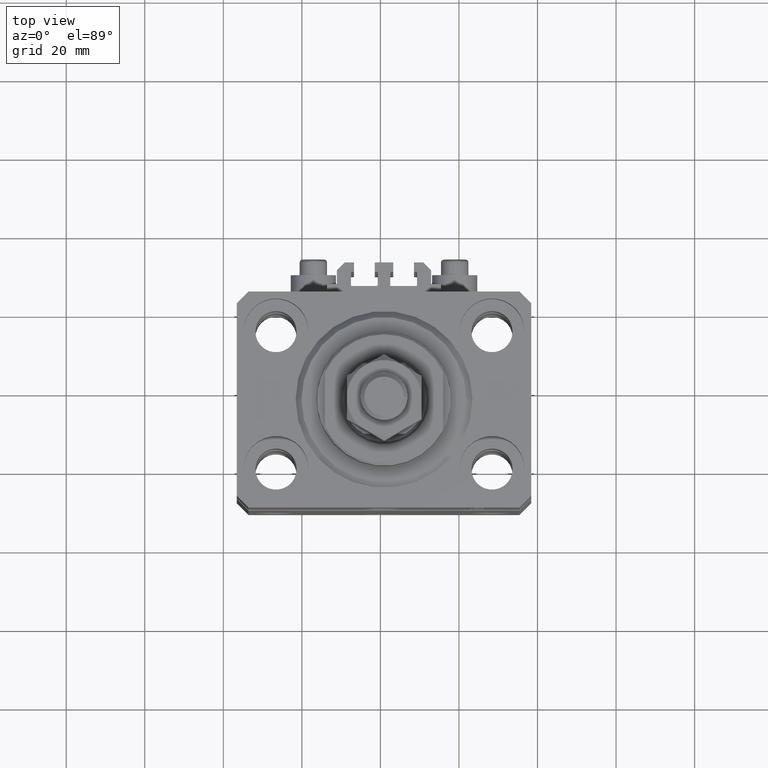
[diagram: clean part render]
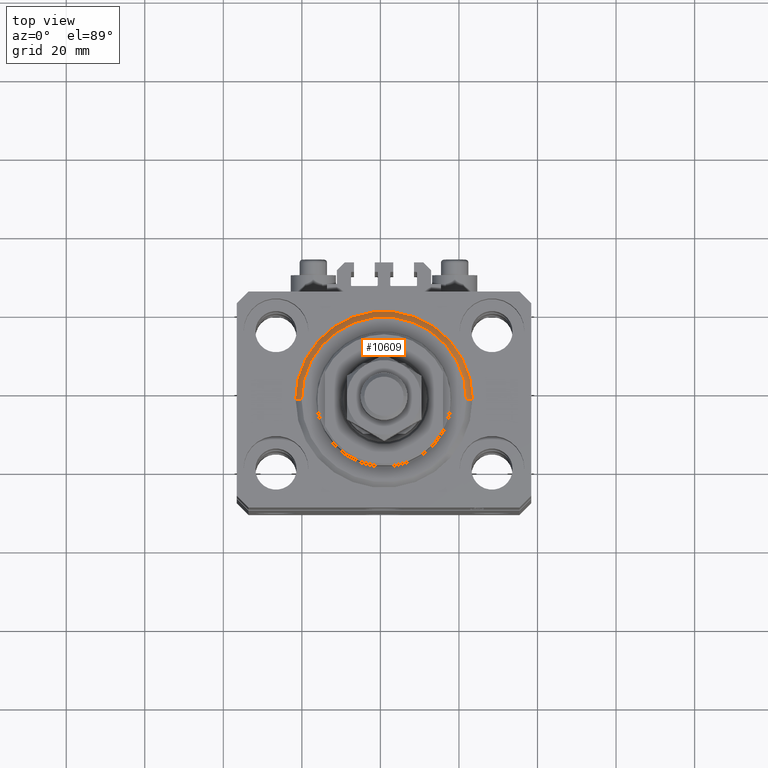
[diagram: same view with one face highlighted and labeled with its STEP entity id]
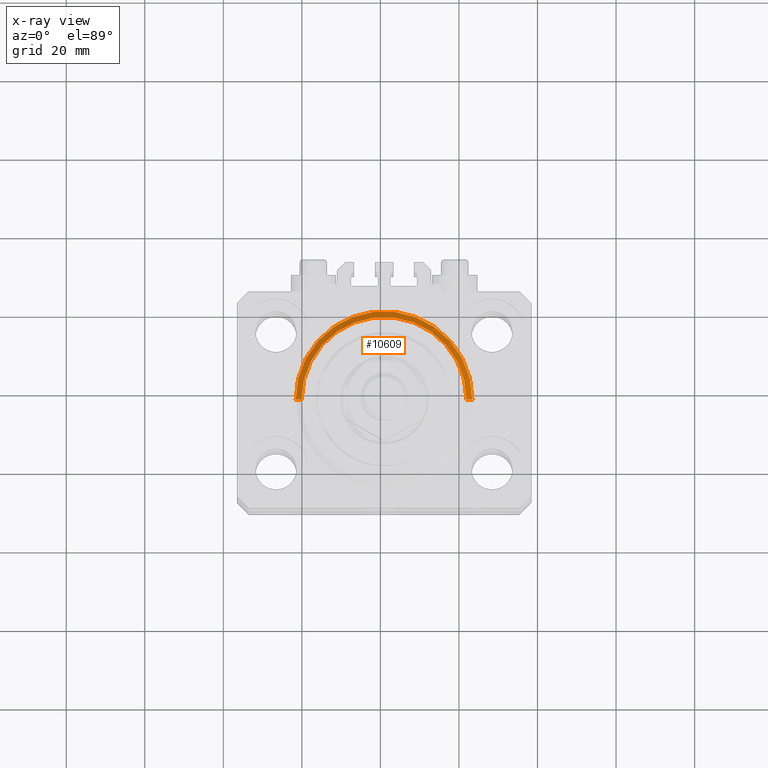
[diagram: x-ray of the same camera — body ghosted, the highlighted face saturated]
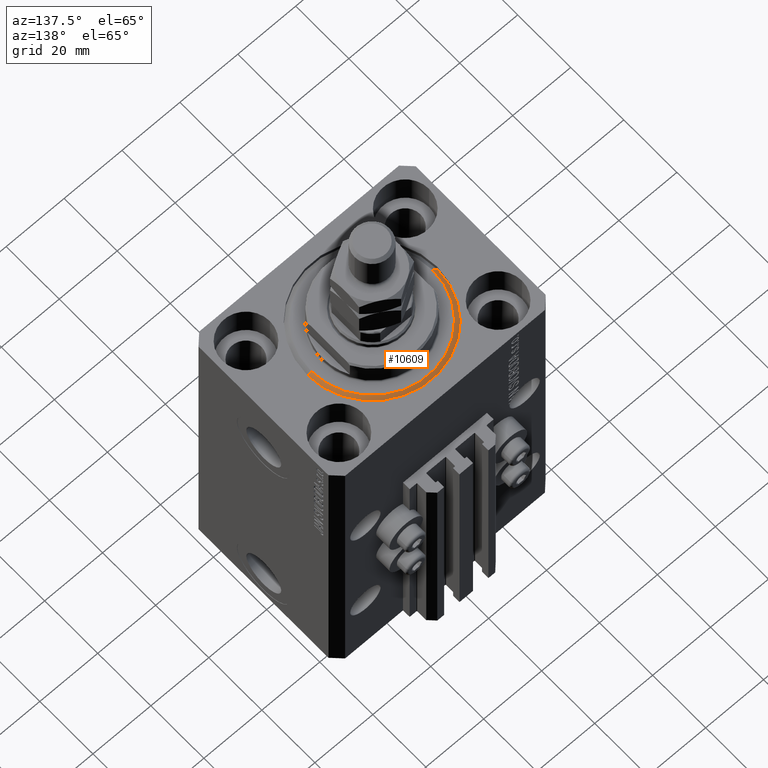
[diagram: same view with one face highlighted and labeled with its STEP entity id]
A machine part, top view. The second image highlights one B-rep face of the part: STEP entity #10609.
The next image is the same camera in x-ray: the body ghosted, the highlighted face saturated — about 0% of this face is hidden behind the body in this view.
A second angle (auxiliary view) of the same face is appended — the face is thin or edge-on in the first view.
In plain terms, the highlighted conical surface has half-angle 45 deg.
Its self-contained STEP definition (entity closure, byte-faithful):
#3 = CARTESIAN_POINT ( 'NONE',  ( 0.000000000000000000, 0.000000000000000000, 0.000000000000000000 ) ) ;
#152 = DIRECTION ( 'NONE',  ( 1.000000000000000000, 0.000000000000000000, 0.000000000000000000 ) ) ;
#1313 = VECTOR ( 'NONE', #29318, 1000.000000000000114 ) ;
#1437 = CARTESIAN_POINT ( 'NONE',  ( 22.50000000000000355, 2.755455298081545172E-15, 1.500000000000001332 ) ) ;
#2694 = CARTESIAN_POINT ( 'NONE',  ( 20.99999999999998934, 0.000000000000000000, 0.000000000000000000 ) ) ;
#3867 = EDGE_LOOP ( 'NONE', ( #39023, #5726, #34178, #29359 ) ) ;
#4059 = EDGE_CURVE ( 'NONE', #45823, #39203, #43002, .T. ) ;
#4904 = AXIS2_PLACEMENT_3D ( 'NONE', #3, #22784, #45284 ) ;
#5726 = ORIENTED_EDGE ( 'NONE', *, *, #11503, .T. ) ;
#6643 = DIRECTION ( 'NONE',  ( -0.7071067811865500152, 8.659560562354963673E-17, 0.7071067811865451302 ) ) ;
#7132 = LINE ( 'NONE', #26647, #16801 ) ;
#7183 = CARTESIAN_POINT ( 'NONE',  ( 0.000000000000000000, 0.000000000000000000, 1.500000000000001332 ) ) ;
#10163 = CARTESIAN_POINT ( 'NONE',  ( -22.50000000000000355, 0.000000000000000000, 1.500000000000001332 ) ) ;
#10609 = ADVANCED_FACE ( 'NONE', ( #21837 ), #45536, .T. ) ;
#11503 = EDGE_CURVE ( 'NONE', #22128, #39203, #7132, .T. ) ;
#15276 = CIRCLE ( 'NONE', #4904, 20.99999999999998934 ) ;
#16006 = AXIS2_PLACEMENT_3D ( 'NONE', #48334, #22330, #37337 ) ;
#16660 = AXIS2_PLACEMENT_3D ( 'NONE', #7183, #22698, #152 ) ;
#16801 = VECTOR ( 'NONE', #6643, 1000.000000000000114 ) ;
#18036 = CARTESIAN_POINT ( 'NONE',  ( 22.50000000000000355, 0.000000000000000000, 1.500000000000001332 ) ) ;
#18373 = VERTEX_POINT ( 'NONE', #2694 ) ;
#21837 = FACE_OUTER_BOUND ( 'NONE', #3867, .T. ) ;
#22128 = VERTEX_POINT ( 'NONE', #41682 ) ;
#22330 = DIRECTION ( 'NONE',  ( -0.000000000000000000, -0.000000000000000000, 1.000000000000000000 ) ) ;
#22698 = DIRECTION ( 'NONE',  ( -0.000000000000000000, -0.000000000000000000, 1.000000000000000000 ) ) ;
#22784 = DIRECTION ( 'NONE',  ( -0.000000000000000000, -0.000000000000000000, -1.000000000000000000 ) ) ;
#26647 = CARTESIAN_POINT ( 'NONE',  ( -22.50000000000000355, 2.755455298081545172E-15, 1.500000000000001332 ) ) ;
#28969 = EDGE_CURVE ( 'NONE', #22128, #18373, #15276, .T. ) ;
#29318 = DIRECTION ( 'NONE',  ( 0.7071067811865500152, 0.000000000000000000, 0.7071067811865451302 ) ) ;
#29359 = ORIENTED_EDGE ( 'NONE', *, *, #44258, .F. ) ;
#34178 = ORIENTED_EDGE ( 'NONE', *, *, #4059, .F. ) ;
#37337 = DIRECTION ( 'NONE',  ( 1.000000000000000000, 0.000000000000000000, 0.000000000000000000 ) ) ;
#39023 = ORIENTED_EDGE ( 'NONE', *, *, #28969, .F. ) ;
#39203 = VERTEX_POINT ( 'NONE', #10163 ) ;
#41682 = CARTESIAN_POINT ( 'NONE',  ( -20.99999999999998934, 2.663606788145492628E-15, 0.000000000000000000 ) ) ;
#43002 = CIRCLE ( 'NONE', #16660, 22.50000000000000355 ) ;
#44258 = EDGE_CURVE ( 'NONE', #18373, #45823, #45289, .T. ) ;
#45284 = DIRECTION ( 'NONE',  ( 1.000000000000000000, 0.000000000000000000, 0.000000000000000000 ) ) ;
#45289 = LINE ( 'NONE', #18036, #1313 ) ;
#45536 = CONICAL_SURFACE ( 'NONE', #16006, 22.50000000000000355, 0.7853981633974517207 ) ;
#45823 = VERTEX_POINT ( 'NONE', #1437 ) ;
#48334 = CARTESIAN_POINT ( 'NONE',  ( 0.000000000000000000, 0.000000000000000000, 1.500000000000001332 ) ) ;